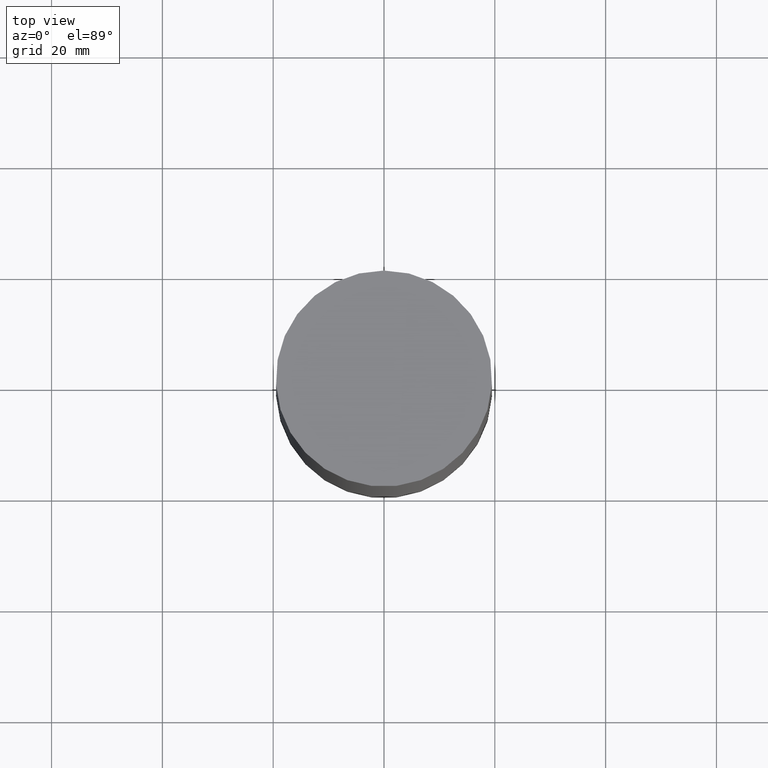
[diagram: clean part render]
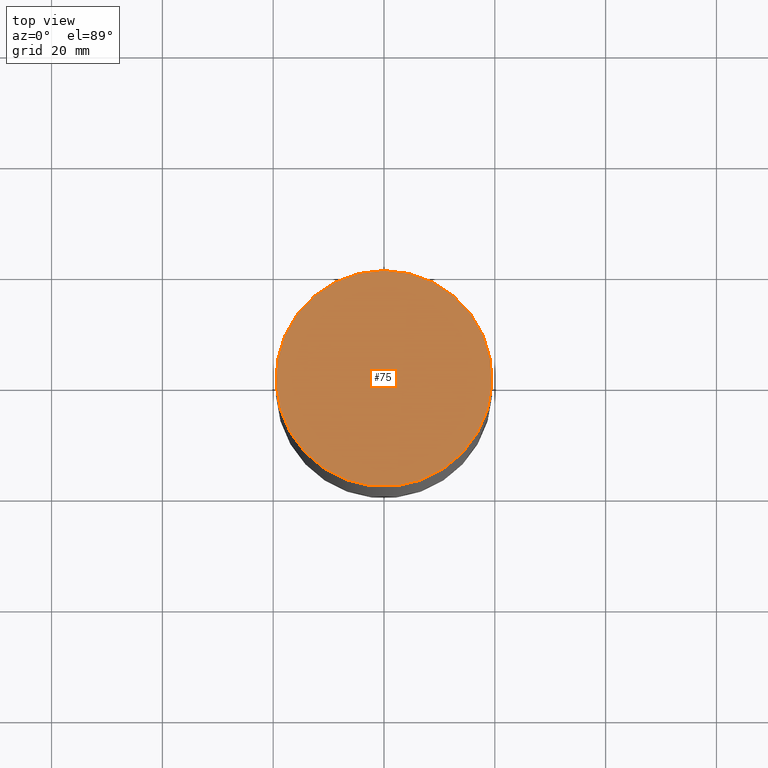
[diagram: same view with one face highlighted and labeled with its STEP entity id]
A machine part, top view. The second image highlights one B-rep face of the part: STEP entity #75.
In plain terms, the highlighted planar face has unit normal (-0, -0, 1).
Its self-contained STEP definition (entity closure, byte-faithful):
#75=ADVANCED_FACE('',(#79),#80,.T.);
#79=FACE_OUTER_BOUND('',#86,.T.);
#80=PLANE('',#87);
#86=EDGE_LOOP('',(#93));
#87=AXIS2_PLACEMENT_3D('',#94,#95,#96);
#93=ORIENTED_EDGE('',*,*,#106,.F.);
#94=CARTESIAN_POINT('',(-1.20178028529764E-031,9.75,1.19403062916867E-015));
#95=DIRECTION('',(-6.12323399573677E-017,-1.22464679914735E-016,1.0));
#96=DIRECTION('',(1.23259516440783E-032,-1.0,-1.22464679914735E-016));
#106=EDGE_CURVE('',#108,#108,#109,.T.);
#108=VERTEX_POINT('',#112);
#109=CIRCLE('',#113,19.5);
#112=CARTESIAN_POINT('',(-2.40356057059527E-031,19.5,2.38806125833734E-015));
#113=AXIS2_PLACEMENT_3D('',#116,#117,#118);
#116=CARTESIAN_POINT('',(0.0,0.0,0.0));
#117=DIRECTION('',(6.12323399573677E-017,1.22464679914735E-016,-1.0));
#118=DIRECTION('',(-1.23259516440783E-032,1.0,1.22464679914735E-016));